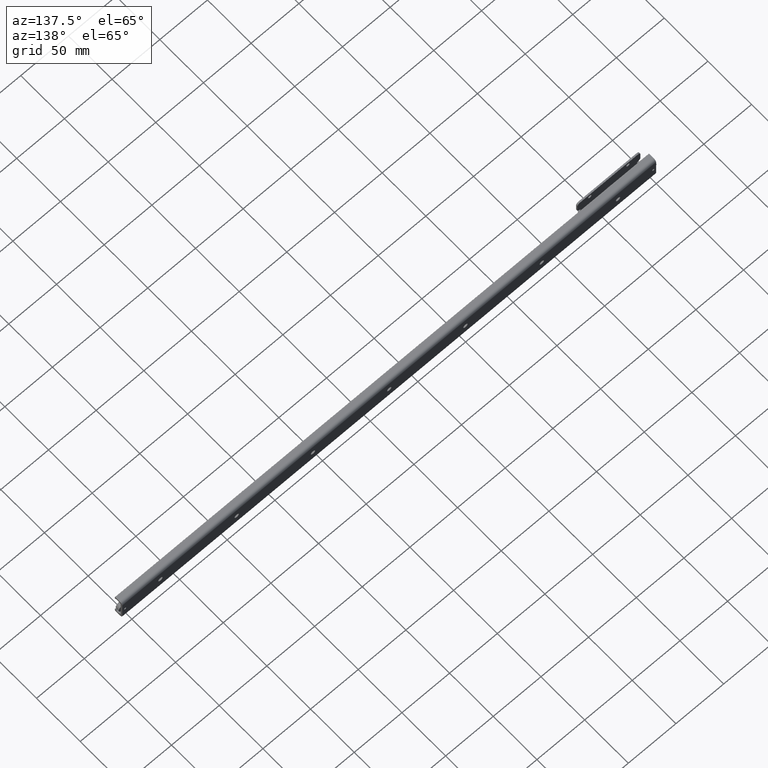
[diagram: clean part render]
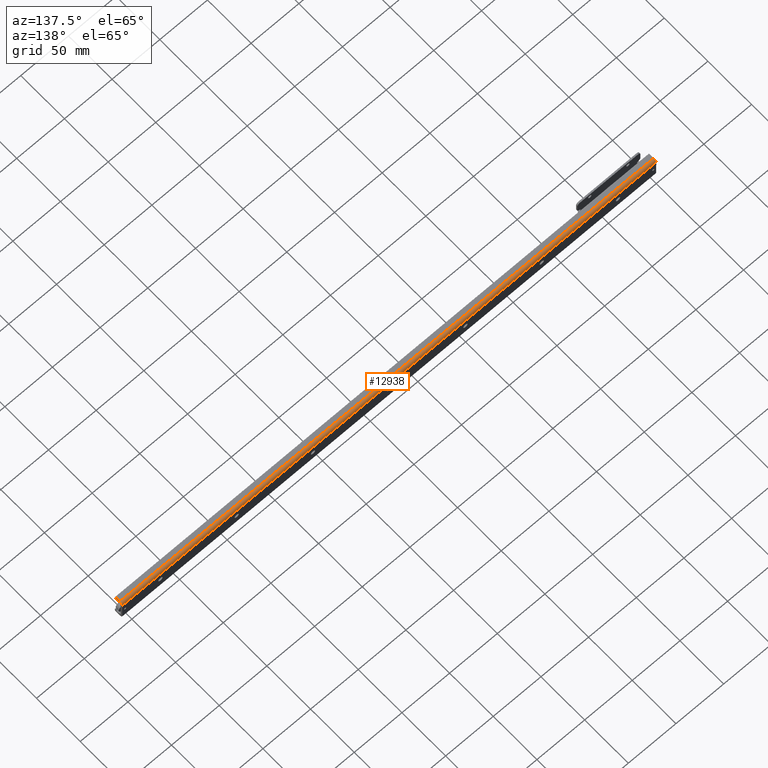
[diagram: same view with one face highlighted and labeled with its STEP entity id]
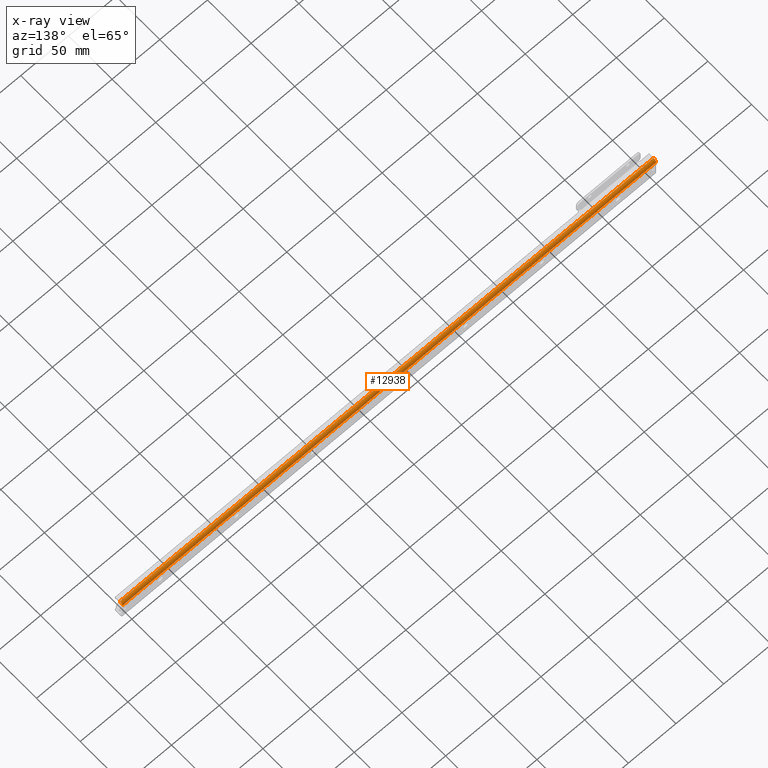
[diagram: x-ray of the same camera — body ghosted, the highlighted face saturated]
A machine part, auxiliary view. The second image highlights one B-rep face of the part: STEP entity #12938.
The next image is the same camera in x-ray: the body ghosted, the highlighted face saturated — about 0% of this face is hidden behind the body in this view.
In plain terms, the highlighted face is a freeform B-spline surface patch.
Its self-contained STEP definition (entity closure, byte-faithful):
#12643=CARTESIAN_POINT('',(0.0,-1.421085E-014,9.499999999880911));
#12644=VERTEX_POINT('',#12643);
#12650=CARTESIAN_POINT('',(560.0,-1.421085E-014,9.499999999880911));
#12651=VERTEX_POINT('',#12650);
#12652=CARTESIAN_POINT('',(560.0,-1.421085E-014,9.499999999880911));
#12653=CARTESIAN_POINT('',(0.0,-1.421085E-014,9.499999999880911));
#12654=QUASI_UNIFORM_CURVE('',1,(#12652,#12653),.UNSPECIFIED.,.F.,.U.);
#12655=EDGE_CURVE('',#12651,#12644,#12654,.T.);
#12793=CARTESIAN_POINT('',(0.0,-3.0,12.499999999880901));
#12794=VERTEX_POINT('',#12793);
#12800=CARTESIAN_POINT('',(0.0,-3.0,12.499999999880909));
#12801=CARTESIAN_POINT('',(0.0,0.0,12.499999999880911));
#12802=CARTESIAN_POINT('',(0.0,0.0,9.499999999880911));
#12810=(BOUNDED_CURVE()B_SPLINE_CURVE(2,(#12800,#12801,#12802),.UNSPECIFIED.,.F.,.U.)CURVE()GEOMETRIC_REPRESENTATION_ITEM()QUASI_UNIFORM_CURVE()RATIONAL_B_SPLINE_CURVE((1.0,0.707106781186548,1.0))REPRESENTATION_ITEM(''));
#12811=EDGE_CURVE('',#12794,#12644,#12810,.T.);
#12824=CARTESIAN_POINT('',(560.0,-3.0,12.499999999880901));
#12825=VERTEX_POINT('',#12824);
#12826=CARTESIAN_POINT('',(560.0,-3.0,12.499999999880909));
#12827=CARTESIAN_POINT('',(560.0,0.0,12.499999999880911));
#12828=CARTESIAN_POINT('',(560.0,0.0,9.499999999880911));
#12836=(BOUNDED_CURVE()B_SPLINE_CURVE(2,(#12826,#12827,#12828),.UNSPECIFIED.,.F.,.U.)CURVE()GEOMETRIC_REPRESENTATION_ITEM()QUASI_UNIFORM_CURVE()RATIONAL_B_SPLINE_CURVE((1.0,0.707106781186548,1.0))REPRESENTATION_ITEM(''));
#12837=EDGE_CURVE('',#12825,#12651,#12836,.T.);
#12914=CARTESIAN_POINT('',(574.000000000000110,-0.001028025073329,9.421469154957288));
#12915=CARTESIAN_POINT('',(-14.350000000000019,-0.001028025073329,9.421469154957288));
#12916=CARTESIAN_POINT('',(574.0,0.084673353587972,12.694272765663268));
#12917=CARTESIAN_POINT('',(-14.350000000000023,0.084673353587972,12.694272765663268));
#12918=CARTESIAN_POINT('',(574.000000000000110,-3.183145618604568,12.494404395146510));
#12919=CARTESIAN_POINT('',(-14.350000000000019,-3.183145618604568,12.494404395146510));
#12927=(BOUNDED_SURFACE()B_SPLINE_SURFACE(1,2,((#12914,#12916,#12918),(#12915,#12917,#12919)),.UNSPECIFIED.,.F.,.F.,.U.)B_SPLINE_SURFACE_WITH_KNOTS((2,2),(3,3),(0.0,588.350000000000140),(0.0,5.280126370701998),.UNSPECIFIED.)GEOMETRIC_REPRESENTATION_ITEM()RATIONAL_B_SPLINE_SURFACE(((1.0,0.675590207615660,1.0),(1.0,0.675590207615660,1.0)))REPRESENTATION_ITEM('')SURFACE());
#12928=ORIENTED_EDGE('',*,*,#12811,.F.);
#12929=CARTESIAN_POINT('',(560.0,-3.0,12.499999999880901));
#12930=CARTESIAN_POINT('',(0.0,-3.0,12.499999999880901));
#12931=QUASI_UNIFORM_CURVE('',1,(#12929,#12930),.UNSPECIFIED.,.F.,.U.);
#12932=EDGE_CURVE('',#12825,#12794,#12931,.T.);
#12933=ORIENTED_EDGE('',*,*,#12932,.F.);
#12934=ORIENTED_EDGE('',*,*,#12837,.T.);
#12935=ORIENTED_EDGE('',*,*,#12655,.T.);
#12936=EDGE_LOOP('',(#12928,#12933,#12934,#12935));
#12937=FACE_OUTER_BOUND('',#12936,.T.);
#12938=ADVANCED_FACE('',(#12937),#12927,.T.);